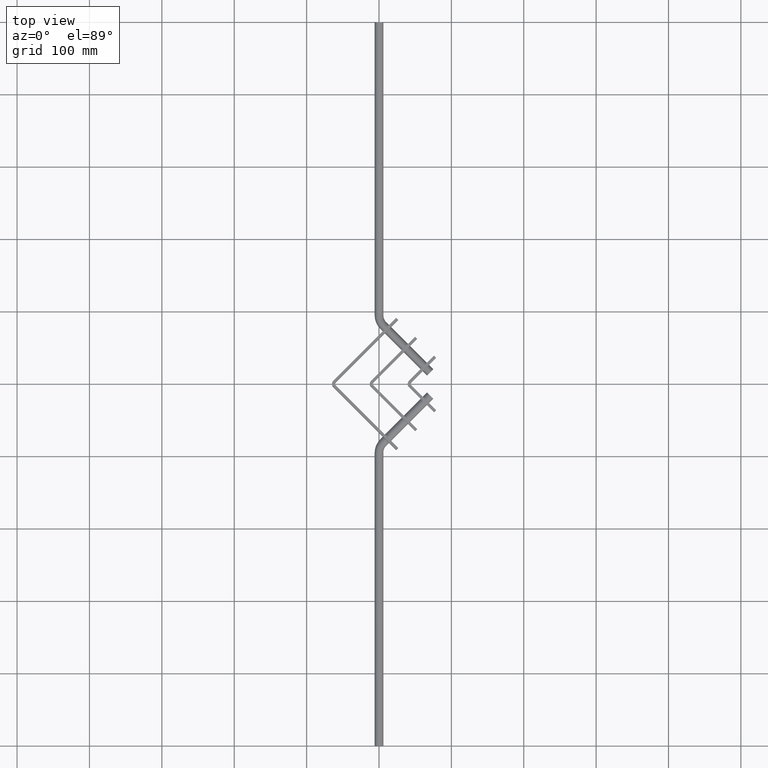
[diagram: clean part render]
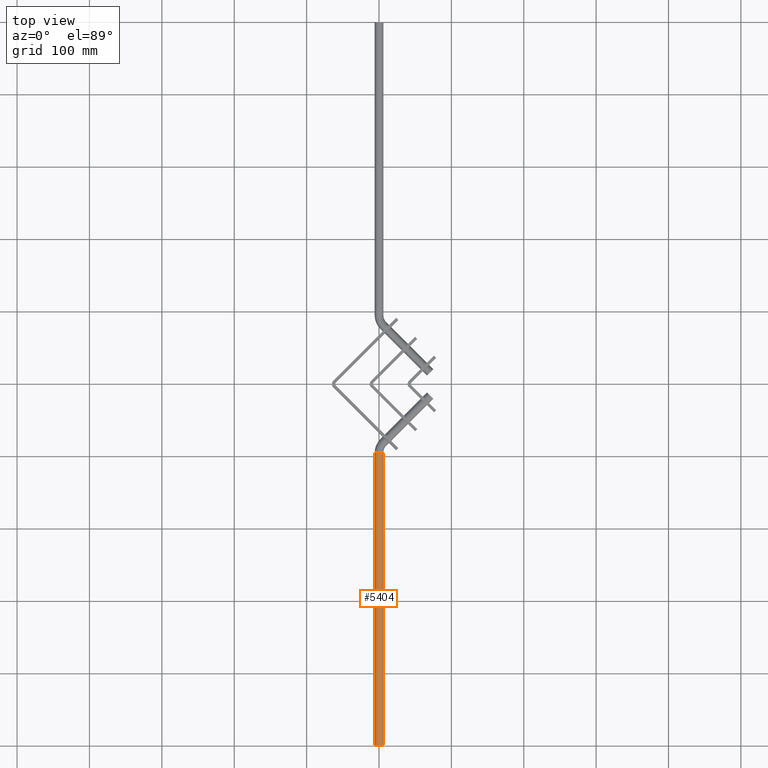
[diagram: same view with one face highlighted and labeled with its STEP entity id]
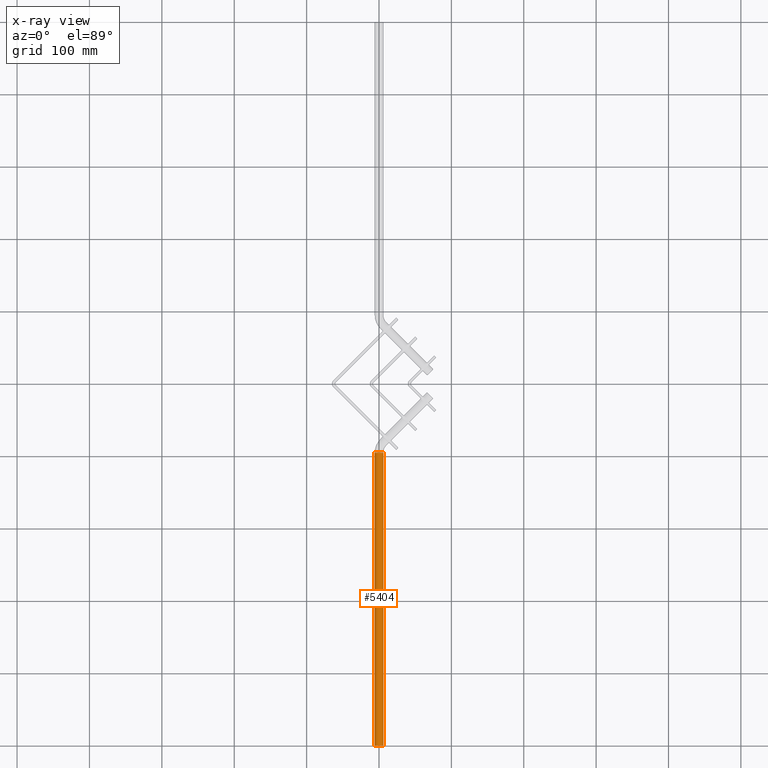
[diagram: x-ray of the same camera — body ghosted, the highlighted face saturated]
A machine part, top view. The second image highlights one B-rep face of the part: STEP entity #5404.
The next image is the same camera in x-ray: the body ghosted, the highlighted face saturated — about 0% of this face is hidden behind the body in this view.
In plain terms, the highlighted cylindrical surface (edge-blend (fillet) strip) has radius 6 mm, axis along (-0, -1, -0).
Its self-contained STEP definition (entity closure, byte-faithful):
#79 = LINE ( 'NONE', #3673, #7457 ) ;
#135 = ORIENTED_EDGE ( 'NONE', *, *, #6892, .T. ) ;
#771 = VECTOR ( 'NONE', #6285, 1000.000000000000000 ) ;
#1060 = CARTESIAN_POINT ( 'NONE',  ( 6.000000000001414900, 405.0000000000000000, 0.0000000000000000000 ) ) ;
#1175 = EDGE_CURVE ( 'NONE', #5446, #5174, #6577, .T. ) ;
#1269 = AXIS2_PLACEMENT_3D ( 'NONE', #5952, #2541, #6522 ) ;
#1279 = DIRECTION ( 'NONE',  ( -3.491481338843133400E-015, -1.000000000000000000, -0.0000000000000000000 ) ) ;
#1464 = EDGE_LOOP ( 'NONE', ( #3311, #135, #2973, #6645 ) ) ;
#1465 = VERTEX_POINT ( 'NONE', #2817 ) ;
#1810 = AXIS2_PLACEMENT_3D ( 'NONE', #6509, #1279, #3095 ) ;
#1984 = EDGE_CURVE ( 'NONE', #1465, #4737, #6570, .T. ) ;
#2476 = DIRECTION ( 'NONE',  ( 0.0000000000000000000, 1.000000000000000000, 0.0000000000000000000 ) ) ;
#2541 = DIRECTION ( 'NONE',  ( 0.0000000000000000000, 1.000000000000000000, 0.0000000000000000000 ) ) ;
#2817 = CARTESIAN_POINT ( 'NONE',  ( -5.999999999998586900, 405.0000000000000000, 7.347880794884120700E-016 ) ) ;
#2973 = ORIENTED_EDGE ( 'NONE', *, *, #1175, .T. ) ;
#3027 = EDGE_CURVE ( 'NONE', #4737, #5174, #6960, .T. ) ;
#3062 = AXIS2_PLACEMENT_3D ( 'NONE', #5897, #2476, #6463 ) ;
#3095 = DIRECTION ( 'NONE',  ( 1.000000000000000000, 0.0000000000000000000, 0.0000000000000000000 ) ) ;
#3311 = ORIENTED_EDGE ( 'NONE', *, *, #1984, .F. ) ;
#3655 = CARTESIAN_POINT ( 'NONE',  ( -6.000000000000001800, 0.0000000000000000000, 7.347880794884986500E-016 ) ) ;
#3673 = CARTESIAN_POINT ( 'NONE',  ( -5.999999999998586900, 405.0000000000000000, 7.347880794884120700E-016 ) ) ;
#4509 = FACE_OUTER_BOUND ( 'NONE', #1464, .T. ) ;
#4553 = CARTESIAN_POINT ( 'NONE',  ( 6.000000000000000900, 0.0000000000000000000, 0.0000000000000000000 ) ) ;
#4737 = VERTEX_POINT ( 'NONE', #5807 ) ;
#5174 = VERTEX_POINT ( 'NONE', #4553 ) ;
#5404 = ADVANCED_FACE ( 'NONE', ( #4509 ), #5873, .T. ) ;
#5446 = VERTEX_POINT ( 'NONE', #3655 ) ;
#5807 = CARTESIAN_POINT ( 'NONE',  ( 6.000000000001415800, 405.0000000000000000, 0.0000000000000000000 ) ) ;
#5873 = CYLINDRICAL_SURFACE ( 'NONE', #1810, 6.000000000000000900 ) ;
#5897 = CARTESIAN_POINT ( 'NONE',  ( 0.0000000000000000000, 0.0000000000000000000, 0.0000000000000000000 ) ) ;
#5952 = CARTESIAN_POINT ( 'NONE',  ( 1.414049942231469200E-012, 405.0000000000000000, 0.0000000000000000000 ) ) ;
#6285 = DIRECTION ( 'NONE',  ( -3.491481338843133400E-015, -1.000000000000000000, -0.0000000000000000000 ) ) ;
#6463 = DIRECTION ( 'NONE',  ( 0.0000000000000000000, 0.0000000000000000000, 1.000000000000000000 ) ) ;
#6509 = CARTESIAN_POINT ( 'NONE',  ( 1.414049942231469200E-012, 405.0000000000000000, 0.0000000000000000000 ) ) ;
#6522 = DIRECTION ( 'NONE',  ( 0.0000000000000000000, 0.0000000000000000000, 1.000000000000000000 ) ) ;
#6546 = DIRECTION ( 'NONE',  ( -3.491481338843133400E-015, -1.000000000000000000, -0.0000000000000000000 ) ) ;
#6570 = CIRCLE ( 'NONE', #1269, 6.000000000000000900 ) ;
#6577 = CIRCLE ( 'NONE', #3062, 6.000000000000000900 ) ;
#6645 = ORIENTED_EDGE ( 'NONE', *, *, #3027, .F. ) ;
#6892 = EDGE_CURVE ( 'NONE', #1465, #5446, #79, .T. ) ;
#6960 = LINE ( 'NONE', #1060, #771 ) ;
#7457 = VECTOR ( 'NONE', #6546, 1000.000000000000000 ) ;